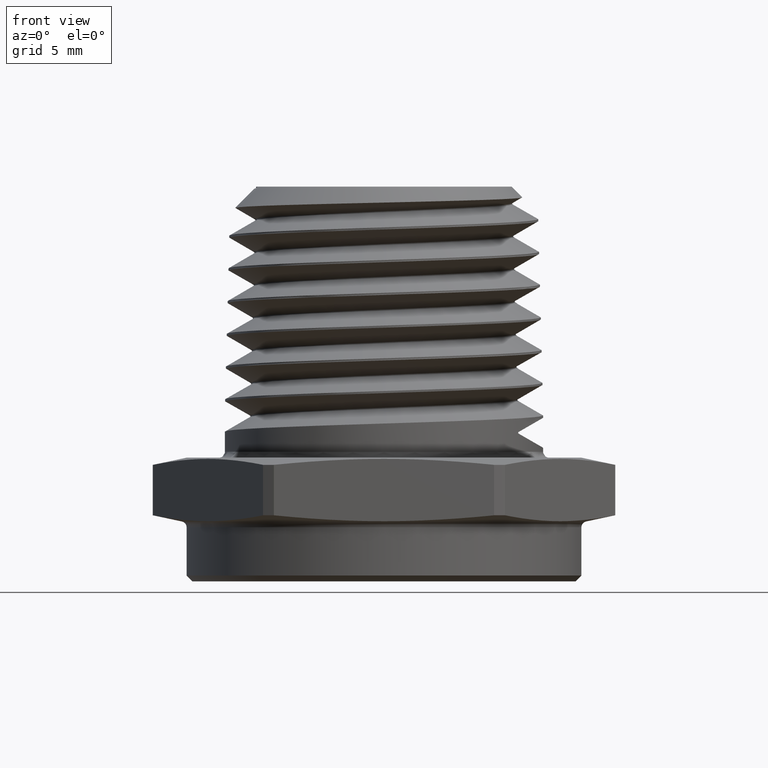
[diagram: clean part render]
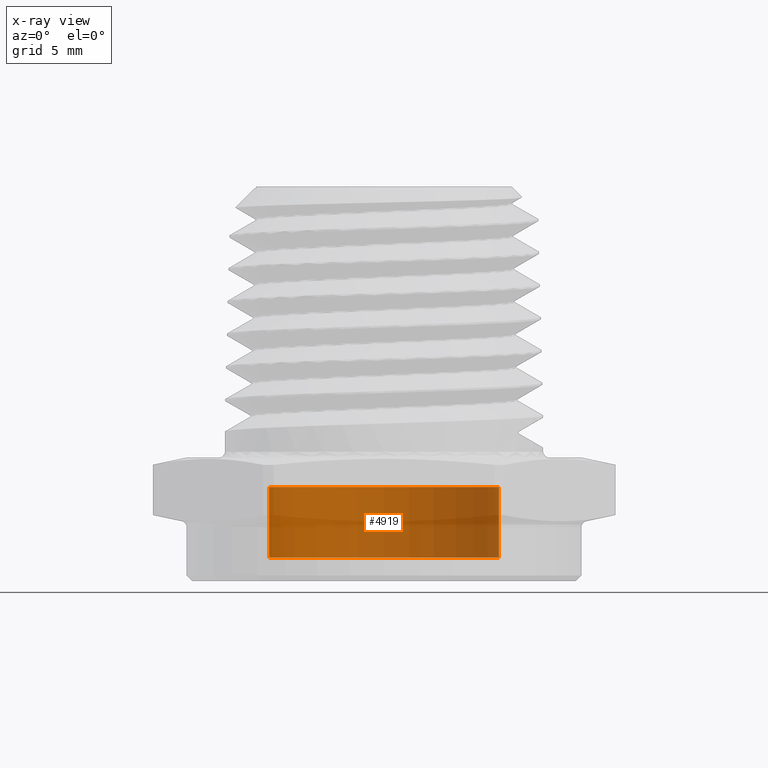
[diagram: x-ray — body ghosted, one internal face saturated and labeled with its STEP entity id]
A machine part, front view, then the same camera in x-ray: the body is ghosted and one INTERNAL B-rep face — a face not visible from any outside direction — is saturated and labeled: STEP entity #4919.
In plain terms, the highlighted cylindrical surface (partial cylindrical patch) has radius 4.953 mm, axis along (-0, -0, -1).
Its self-contained STEP definition (entity closure, byte-faithful):
#700 = AXIS2_PLACEMENT_3D ( 'NONE', #4334, #4335, #4336 ) ;
#701 = AXIS2_PLACEMENT_3D ( 'NONE', #4337, #4338, #4339 ) ;
#787 = AXIS2_PLACEMENT_3D ( 'NONE', #2408, #2404, #2417 ) ;
#1751 = EDGE_CURVE ( 'NONE', #2520, #2516, #2646, .T. ) ;
#1752 = EDGE_CURVE ( 'NONE', #2520, #2514, #2648, .T. ) ;
#1753 = EDGE_CURVE ( 'NONE', #2516, #2517, #2650, .T. ) ;
#1754 = EDGE_CURVE ( 'NONE', #2514, #2517, #2653, .T. ) ;
#1894 = ORIENTED_EDGE ( 'NONE', *, *, #1754, .F. ) ;
#1895 = ORIENTED_EDGE ( 'NONE', *, *, #1753, .T. ) ;
#1896 = ORIENTED_EDGE ( 'NONE', *, *, #1751, .T. ) ;
#1897 = ORIENTED_EDGE ( 'NONE', *, *, #1752, .F. ) ;
#2404 = DIRECTION ( 'NONE',  ( -0.0000000000000000000, -0.0000000000000000000, -1.000000000000000000 ) ) ;
#2408 = CARTESIAN_POINT ( 'NONE',  ( -2.924951272421388200E-017, 0.0000000000000000000, 0.05999999999999997700 ) ) ;
#2417 = DIRECTION ( 'NONE',  ( -1.000000000000000000, 0.0000000000000000000, 0.0000000000000000000 ) ) ;
#2514 = VERTEX_POINT ( 'NONE', #4592 ) ;
#2516 = VERTEX_POINT ( 'NONE', #4580 ) ;
#2517 = VERTEX_POINT ( 'NONE', #4594 ) ;
#2520 = VERTEX_POINT ( 'NONE', #4581 ) ;
#2646 = LINE ( 'NONE', #3207, #2651 ) ;
#2648 = CIRCLE ( 'NONE', #700, 0.1949999999999999200 ) ;
#2650 = CIRCLE ( 'NONE', #701, 0.1949999999999999200 ) ;
#2651 = VECTOR ( 'NONE', #4331, 39.37007874015748100 ) ;
#2653 = LINE ( 'NONE', #4332, #2655 ) ;
#2655 = VECTOR ( 'NONE', #4333, 39.37007874015748100 ) ;
#3207 = CARTESIAN_POINT ( 'NONE',  ( 0.1949999999999999000, 2.388061258337337500E-017, 0.05999999999999997700 ) ) ;
#4331 = DIRECTION ( 'NONE',  ( -0.0000000000000000000, -0.0000000000000000000, -1.000000000000000000 ) ) ;
#4332 = CARTESIAN_POINT ( 'NONE',  ( -0.1949999999999999800, 0.0000000000000000000, 0.05999999999999997700 ) ) ;
#4333 = DIRECTION ( 'NONE',  ( -0.0000000000000000000, -0.0000000000000000000, -1.000000000000000000 ) ) ;
#4334 = CARTESIAN_POINT ( 'NONE',  ( -2.924951272421388200E-017, 0.0000000000000000000, 0.05999999999999997700 ) ) ;
#4335 = DIRECTION ( 'NONE',  ( 0.0000000000000000000, 0.0000000000000000000, 1.000000000000000000 ) ) ;
#4336 = DIRECTION ( 'NONE',  ( 1.000000000000000000, 0.0000000000000000000, 0.0000000000000000000 ) ) ;
#4337 = CARTESIAN_POINT ( 'NONE',  ( -2.924951272421388200E-017, 0.0000000000000000000, -0.06000000000000002600 ) ) ;
#4338 = DIRECTION ( 'NONE',  ( 0.0000000000000000000, 0.0000000000000000000, 1.000000000000000000 ) ) ;
#4339 = DIRECTION ( 'NONE',  ( 1.000000000000000000, 0.0000000000000000000, 0.0000000000000000000 ) ) ;
#4580 = CARTESIAN_POINT ( 'NONE',  ( 0.1949999999999999000, 2.388061258337337500E-017, -0.06000000000000002600 ) ) ;
#4581 = CARTESIAN_POINT ( 'NONE',  ( 0.1949999999999999000, 2.388061258337337500E-017, 0.05999999999999997700 ) ) ;
#4592 = CARTESIAN_POINT ( 'NONE',  ( -0.1949999999999999800, 0.0000000000000000000, 0.05999999999999997700 ) ) ;
#4594 = CARTESIAN_POINT ( 'NONE',  ( -0.1949999999999999800, 0.0000000000000000000, -0.06000000000000002600 ) ) ;
#4919 = ADVANCED_FACE ( 'NONE', ( #5257 ), #5264, .T. ) ;
#5257 = FACE_OUTER_BOUND ( 'NONE', #5299, .T. ) ;
#5264 = CYLINDRICAL_SURFACE ( 'NONE', #787, 0.1949999999999999200 ) ;
#5299 = EDGE_LOOP ( 'NONE', ( #1897, #1896, #1895, #1894 ) ) ;